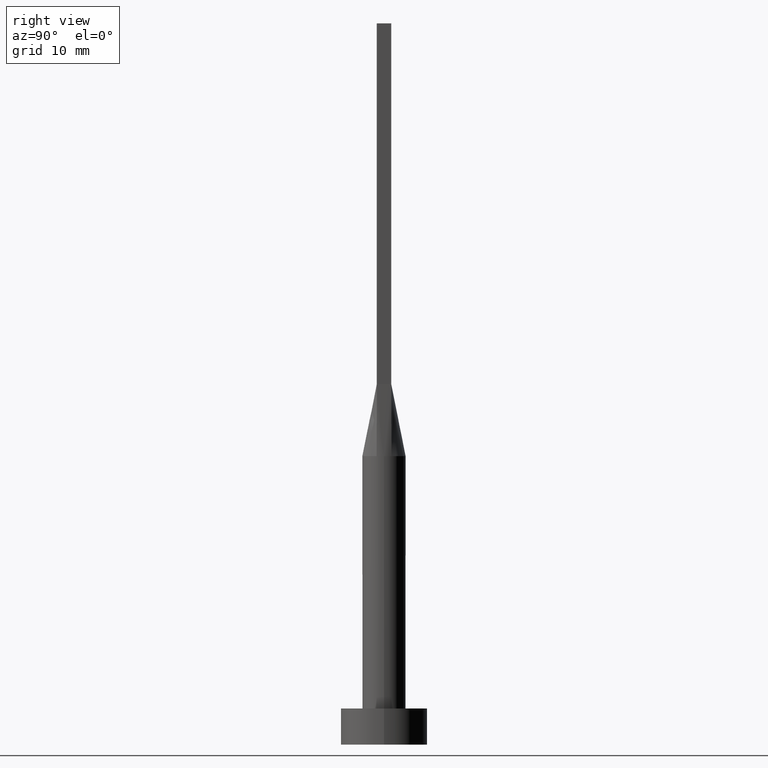
[diagram: clean part render]
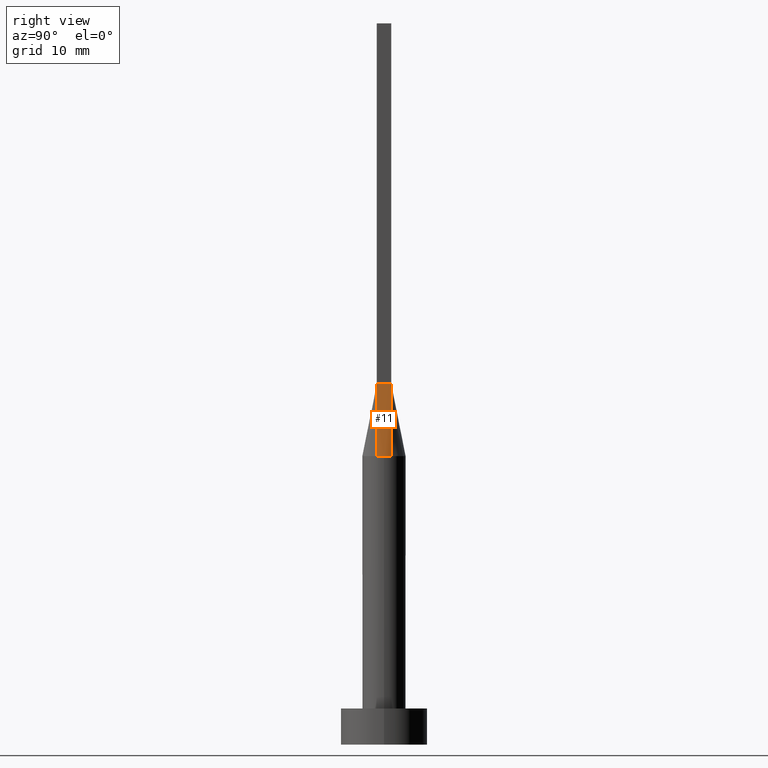
[diagram: same view with one face highlighted and labeled with its STEP entity id]
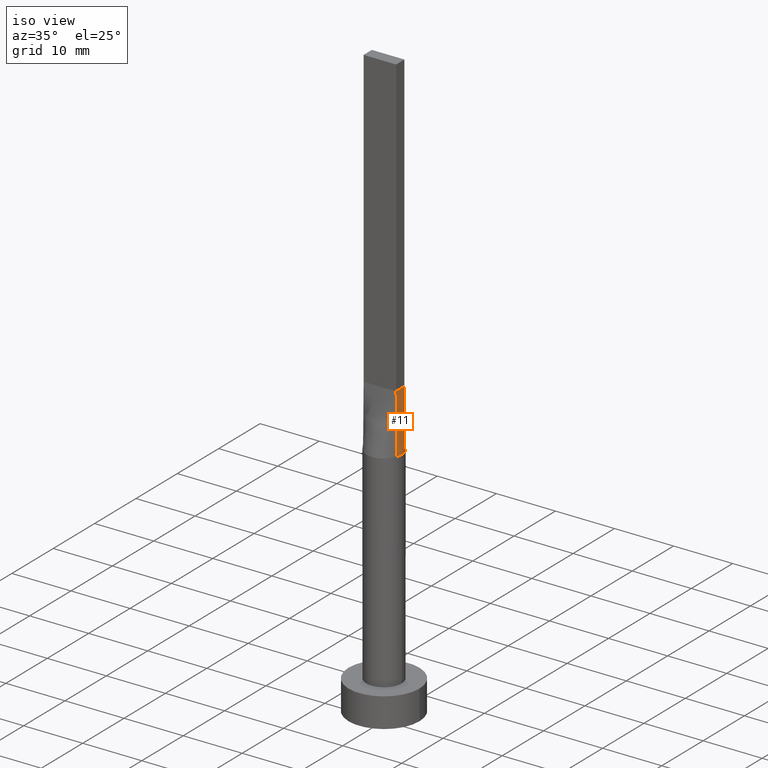
[diagram: same view with one face highlighted and labeled with its STEP entity id]
A machine part, right view. The second image highlights one B-rep face of the part: STEP entity #11.
A second angle (iso view) of the same face is appended — the face is thin or edge-on in the first view.
In plain terms, the highlighted face is a freeform B-spline surface patch.
Its self-contained STEP definition (entity closure, byte-faithful):
#3 = VERTEX_POINT ( 'NONE', #186 ) ;
#7 = ORIENTED_EDGE ( 'NONE', *, *, #527, .F. ) ;
#9 = CARTESIAN_POINT ( 'NONE',  ( 0.000000000000000000, 0.000000000000000000, 40.00000000000000000 ) ) ;
#11 = ADVANCED_FACE ( 'NONE', ( #333 ), #65, .T. ) ;
#42 = DIRECTION ( 'NONE',  ( 0.000000000000000000, 0.000000000000000000, 1.000000000000000000 ) ) ;
#52 = VECTOR ( 'NONE', #315, 1000.000000000000000 ) ;
#57 = AXIS2_PLACEMENT_3D ( 'NONE', #9, #42, #456 ) ;
#59 = CARTESIAN_POINT ( 'NONE',  ( 2.750000000000000000, -0.9999999999999997780, 50.00000000000000000 ) ) ;
#62 = ORIENTED_EDGE ( 'NONE', *, *, #365, .F. ) ;
#65 = B_SPLINE_SURFACE_WITH_KNOTS ( 'NONE', 3, 1, ( 
 ( #507, #285 ),
 ( #563, #206 ),
 ( #575, #530 ),
 ( #521, #480 ),
 ( #140, #172 ),
 ( #216, #531 ) ),
 .UNSPECIFIED., .F., .F., .F.,
 ( 4, 2, 4 ),
 ( 2, 2 ),
 ( 0.000000000000000000, 0.5000000000000000000, 1.000000000000000000 ),
 ( 0.000000000000000000, 1.000000000000000000 ),
 .UNSPECIFIED. ) ;
#94 = LINE ( 'NONE', #579, #455 ) ;
#128 = CARTESIAN_POINT ( 'NONE',  ( 0.000000000000000000, 0.000000000000000000, 40.00000000000000000 ) ) ;
#134 = EDGE_CURVE ( 'NONE', #243, #330, #525, .T. ) ;
#139 = CARTESIAN_POINT ( 'NONE',  ( 2.819412401233197141, 1.025240989080170806, 40.00000000000000000 ) ) ;
#140 = CARTESIAN_POINT ( 'NONE',  ( 2.936168591633195657, 0.7040613060484338659, 40.00000000000000000 ) ) ;
#172 = CARTESIAN_POINT ( 'NONE',  ( 2.749999999999999556, 0.6666666666666666297, 50.00000000000000000 ) ) ;
#175 = LINE ( 'NONE', #309, #52 ) ;
#176 = DIRECTION ( 'NONE',  ( -0.006937837988376364777, 0.002522850177591326286, 0.9999727504442450510 ) ) ;
#186 = CARTESIAN_POINT ( 'NONE',  ( 2.749999999999999556, 1.000000000000000000, 50.00000000000000000 ) ) ;
#189 = VERTEX_POINT ( 'NONE', #59 ) ;
#206 = CARTESIAN_POINT ( 'NONE',  ( 2.750000000000000000, -0.6666666666666666297, 50.00000000000000000 ) ) ;
#216 = CARTESIAN_POINT ( 'NONE',  ( 2.819380270465311700, 1.025229189260112639, 40.00000000000000000 ) ) ;
#225 = EDGE_LOOP ( 'NONE', ( #341, #474, #496, #7, #62 ) ) ;
#243 = VERTEX_POINT ( 'NONE', #476 ) ;
#248 = CIRCLE ( 'NONE', #374, 3.000000000000000444 ) ;
#257 = DIRECTION ( 'NONE',  ( -0.006937837988376408145, -0.002522850177591326286, 0.9999727504442450510 ) ) ;
#262 = DIRECTION ( 'NONE',  ( 1.000000000000000000, 0.000000000000000000, 0.000000000000000000 ) ) ;
#285 = CARTESIAN_POINT ( 'NONE',  ( 2.750000000000000000, -1.000000000000000000, 50.00000000000000000 ) ) ;
#309 = CARTESIAN_POINT ( 'NONE',  ( 2.749999999999999556, 1.000000000000000000, 50.00000000000000000 ) ) ;
#315 = DIRECTION ( 'NONE',  ( -2.168404344971008868E-16, 1.000000000000000000, -0.000000000000000000 ) ) ;
#330 = VERTEX_POINT ( 'NONE', #357 ) ;
#333 = FACE_OUTER_BOUND ( 'NONE', #225, .T. ) ;
#341 = ORIENTED_EDGE ( 'NONE', *, *, #134, .T. ) ;
#352 = CARTESIAN_POINT ( 'NONE',  ( 2.784690135232655628, 1.012614594630056430, 45.00000000000000000 ) ) ;
#357 = CARTESIAN_POINT ( 'NONE',  ( 3.000000000000000444, 7.514166843208536743E-18, 39.99999999999999289 ) ) ;
#365 = EDGE_CURVE ( 'NONE', #243, #189, #94, .T. ) ;
#374 = AXIS2_PLACEMENT_3D ( 'NONE', #128, #546, #262 ) ;
#380 = VERTEX_POINT ( 'NONE', #139 ) ;
#383 = EDGE_CURVE ( 'NONE', #330, #380, #248, .T. ) ;
#392 = VECTOR ( 'NONE', #257, 1000.000000000000227 ) ;
#398 = LINE ( 'NONE', #352, #392 ) ;
#402 = EDGE_CURVE ( 'NONE', #380, #3, #398, .T. ) ;
#455 = VECTOR ( 'NONE', #176, 1000.000000000000227 ) ;
#456 = DIRECTION ( 'NONE',  ( 1.000000000000000000, 8.881784197001252323E-16, 0.000000000000000000 ) ) ;
#474 = ORIENTED_EDGE ( 'NONE', *, *, #383, .T. ) ;
#476 = CARTESIAN_POINT ( 'NONE',  ( 2.819430526142641558, -1.025247683279450817, 40.00000000000000000 ) ) ;
#480 = CARTESIAN_POINT ( 'NONE',  ( 2.749999999999999556, 0.3333333333333333148, 50.00000000000000000 ) ) ;
#496 = ORIENTED_EDGE ( 'NONE', *, *, #402, .T. ) ;
#507 = CARTESIAN_POINT ( 'NONE',  ( 2.819380270465311700, -1.025229189260113083, 40.00000000000000000 ) ) ;
#521 = CARTESIAN_POINT ( 'NONE',  ( 3.000000000000000444, 0.3523499553598119505, 39.99999999999998579 ) ) ;
#525 = CIRCLE ( 'NONE', #57, 3.000000000000000444 ) ;
#527 = EDGE_CURVE ( 'NONE', #189, #3, #175, .T. ) ;
#530 = CARTESIAN_POINT ( 'NONE',  ( 2.750000000000000000, -0.3333333333333333148, 50.00000000000000000 ) ) ;
#531 = CARTESIAN_POINT ( 'NONE',  ( 2.749999999999999556, 1.000000000000000000, 50.00000000000000000 ) ) ;
#546 = DIRECTION ( 'NONE',  ( 0.000000000000000000, 0.000000000000000000, 1.000000000000000000 ) ) ;
#563 = CARTESIAN_POINT ( 'NONE',  ( 2.936168591633194769, -0.7040613060484341990, 40.00000000000000000 ) ) ;
#575 = CARTESIAN_POINT ( 'NONE',  ( 3.000000000000000444, -0.3523499553598126721, 39.99999999999999289 ) ) ;
#579 = CARTESIAN_POINT ( 'NONE',  ( 2.784690135232656072, -1.012614594630056208, 45.00000000000000000 ) ) ;